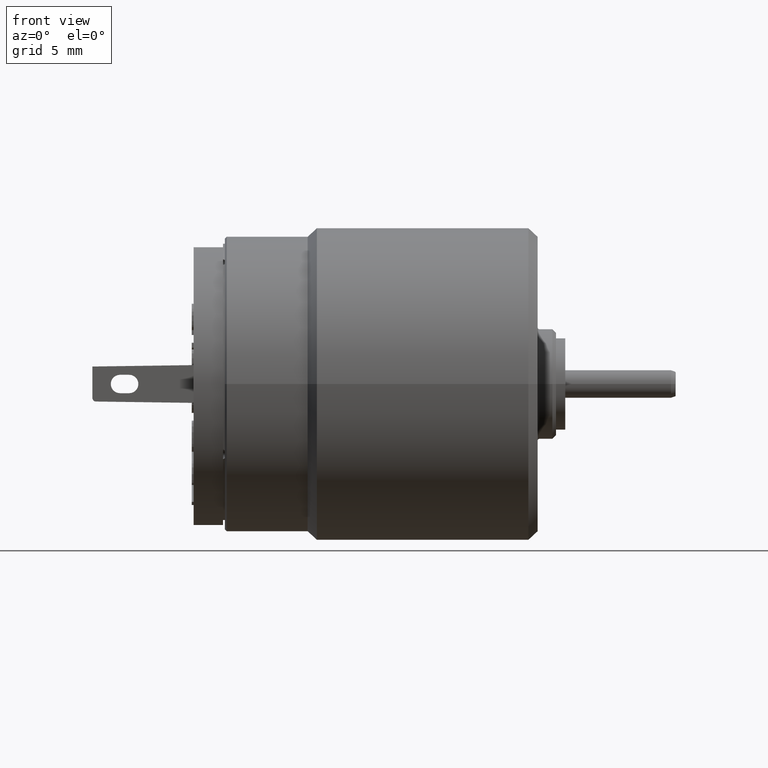
[diagram: clean part render]
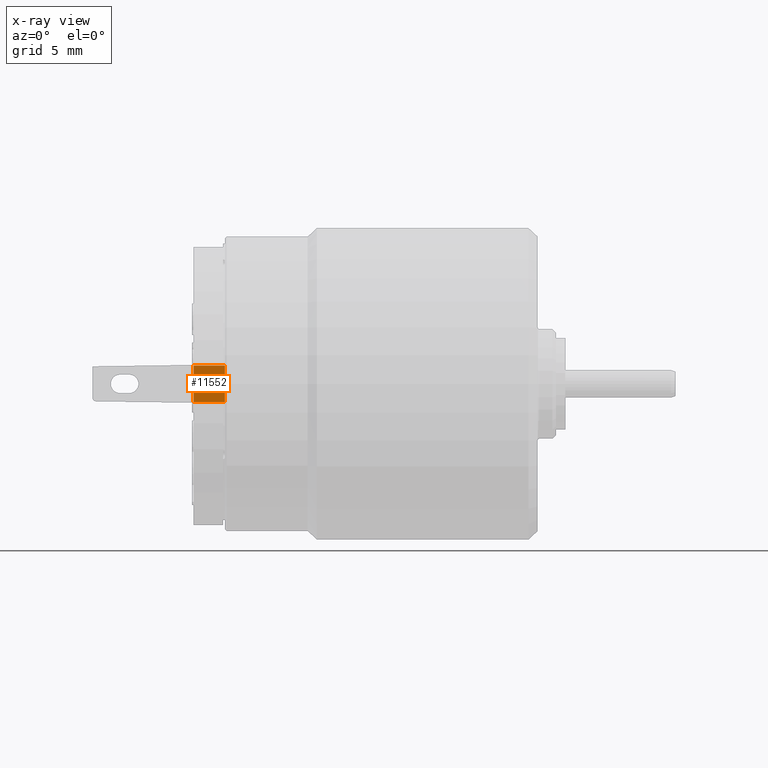
[diagram: x-ray — body ghosted, one internal face saturated and labeled with its STEP entity id]
A machine part, front view, then the same camera in x-ray: the body is ghosted and one INTERNAL B-rep face — a face not visible from any outside direction — is saturated and labeled: STEP entity #11552.
In plain terms, the highlighted planar face has unit normal (0, -1, 0).
Its self-contained STEP definition (entity closure, byte-faithful):
#11458=DIRECTION('',(0.E0,0.E0,1.E0));
#11459=VECTOR('',#11458,2.E0);
#11460=CARTESIAN_POINT('',(-1.7E1,-5.1E0,-1.E0));
#11461=LINE('',#11460,#11459);
#11474=DIRECTION('',(0.E0,0.E0,1.E0));
#11475=VECTOR('',#11474,2.E0);
#11476=CARTESIAN_POINT('',(-1.87E1,-5.1E0,-1.E0));
#11477=LINE('',#11476,#11475);
#11478=DIRECTION('',(1.E0,0.E0,0.E0));
#11479=VECTOR('',#11478,1.7E0);
#11480=CARTESIAN_POINT('',(-1.87E1,-5.1E0,-1.E0));
#11481=LINE('',#11480,#11479);
#11486=DIRECTION('',(1.E0,0.E0,0.E0));
#11487=VECTOR('',#11486,1.7E0);
#11488=CARTESIAN_POINT('',(-1.87E1,-5.1E0,1.E0));
#11489=LINE('',#11488,#11487);
#11506=CARTESIAN_POINT('',(-1.7E1,-5.1E0,-1.E0));
#11507=CARTESIAN_POINT('',(-1.7E1,-5.1E0,1.E0));
#11508=VERTEX_POINT('',#11506);
#11509=VERTEX_POINT('',#11507);
#11515=CARTESIAN_POINT('',(-1.87E1,-5.1E0,1.E0));
#11517=VERTEX_POINT('',#11515);
#11520=CARTESIAN_POINT('',(-1.87E1,-5.1E0,-1.E0));
#11521=VERTEX_POINT('',#11520);
#11538=CARTESIAN_POINT('',(-1.87E1,-5.1E0,-1.E0));
#11539=DIRECTION('',(0.E0,-1.E0,0.E0));
#11540=DIRECTION('',(0.E0,0.E0,1.E0));
#11541=AXIS2_PLACEMENT_3D('',#11538,#11539,#11540);
#11542=PLANE('',#11541);
#11544=ORIENTED_EDGE('',*,*,#11543,.T.);
#11546=ORIENTED_EDGE('',*,*,#11545,.T.);
#11547=ORIENTED_EDGE('',*,*,#11527,.F.);
#11549=ORIENTED_EDGE('',*,*,#11548,.F.);
#11550=EDGE_LOOP('',(#11544,#11546,#11547,#11549));
#11551=FACE_OUTER_BOUND('',#11550,.F.);
#11552=ADVANCED_FACE('',(#11551),#11542,.T.);
#11527=EDGE_CURVE('',#11508,#11509,#11461,.T.);
#11543=EDGE_CURVE('',#11521,#11517,#11477,.T.);
#11545=EDGE_CURVE('',#11517,#11509,#11489,.T.);
#11548=EDGE_CURVE('',#11521,#11508,#11481,.T.);